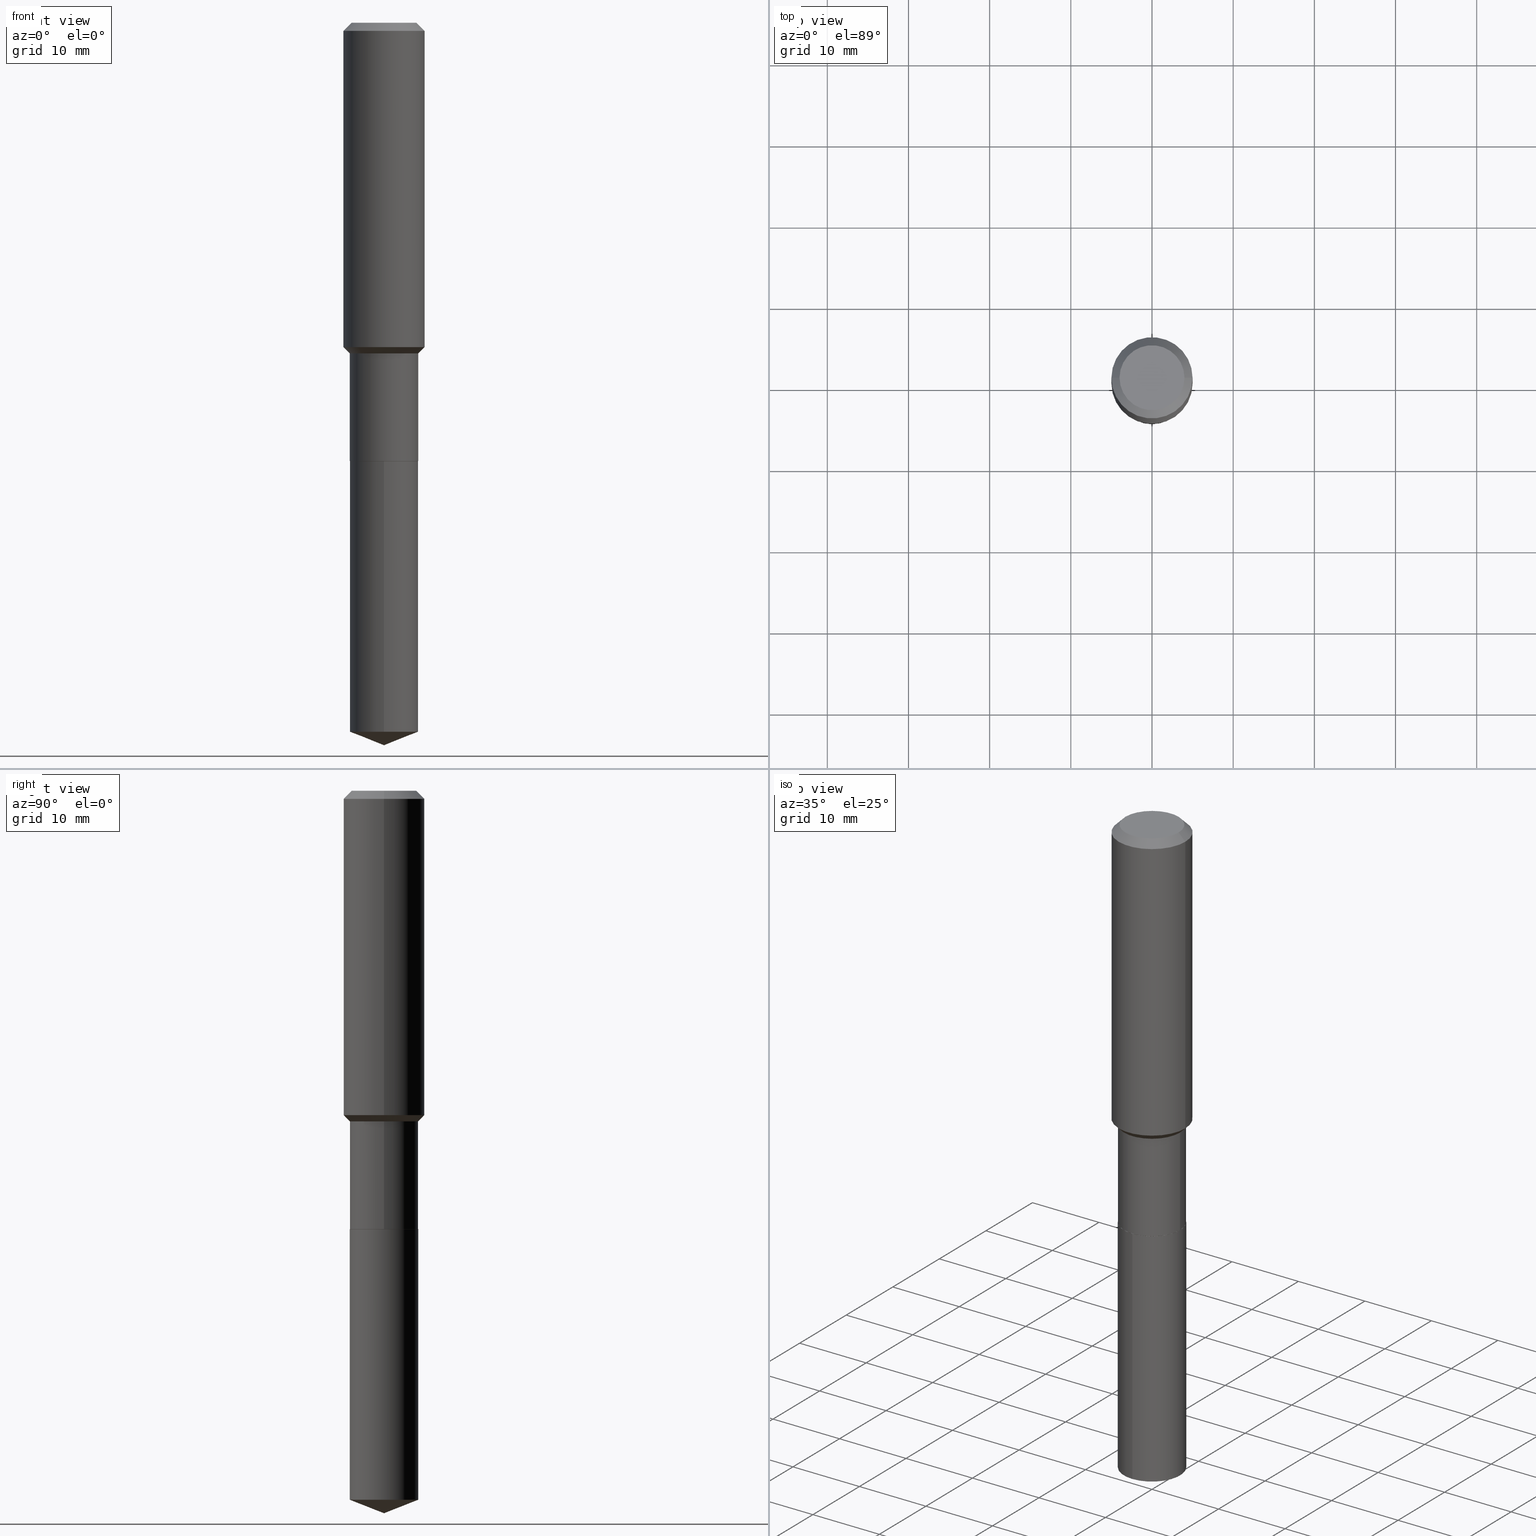
[diagram: canonical four-view strip — front | top / right | iso, engineering-drawing reading convention]
A machine part, canonical four-view strip (front | top / right | iso — engineering-drawing reading convention). The complete STEP part file that produces these views, byte-faithful:
ISO-10303-21;
HEADER;
FILE_DESCRIPTION (( 'STEP AP203' ),
    '1' );
FILE_NAME ('56417.STEP',
    '2024-04-24T17:25:27',
    ( '' ),
    ( '' ),
    'SwSTEP 2.0',
    'SolidWorks 2023',
    '' );
FILE_SCHEMA (( 'CONFIG_CONTROL_DESIGN' ));
ENDSEC;

DATA;
#1 = ORIENTED_EDGE ( 'NONE', *, *, #155, .F. ) ;
#2 = DIRECTION ( 'NONE',  ( 1.000000000000000000, -6.982962677686266711E-15, 0.000000000000000000 ) ) ;
#3 = ORIENTED_EDGE ( 'NONE', *, *, #485, .F. ) ;
#4 = CARTESIAN_POINT ( 'NONE',  ( -8.770026590661456197E-28, 1.252394912314344235E-13, 35.86617874015747987 ) ) ;
#5 = CARTESIAN_POINT ( 'NONE',  ( -0.1659999999999999531, -4.419787681740985649E-15, -1.603699999999999903 ) ) ;
#6 = CARTESIAN_POINT ( 'NONE',  ( 5.197599400665889285E-29, -7.420794437577220826E-15, -2.125399999999999956 ) ) ;
#7 = AXIS2_PLACEMENT_3D ( 'NONE', #401, #405, #254 ) ;
#8 = CARTESIAN_POINT ( 'NONE',  ( 5.198822135068982087E-29, -7.422540178246643119E-15, -2.125899999999999679 ) ) ;
#9 = CC_DESIGN_SECURITY_CLASSIFICATION ( #249, ( #214 ) ) ;
#10 = ORIENTED_EDGE ( 'NONE', *, *, #155, .T. ) ;
#11 = DIRECTION ( 'NONE',  ( 1.000000000000000000, -6.982962677686265922E-15, 0.000000000000000000 ) ) ;
#12 =( LENGTH_UNIT ( ) NAMED_UNIT ( * ) SI_UNIT ( $, .METRE. ) );
#13 = ORIENTED_EDGE ( 'NONE', *, *, #189, .T. ) ;
#14 = DATE_AND_TIME ( #261, #295 ) ;
#15 = DIRECTION ( 'NONE',  ( -2.445222560130398005E-29, 3.491833977208986310E-15, 1.000000000000000000 ) ) ;
#16 = ORIENTED_EDGE ( 'NONE', *, *, #253, .T. ) ;
#17 = CARTESIAN_POINT ( 'NONE',  ( -0.1659999999999999531, -5.330540588978220743E-15, -1.603699999999999903 ) ) ;
#18 = VECTOR ( 'NONE', #257, 39.37007874015748854 ) ;
#19 = AXIS2_PLACEMENT_3D ( 'NONE', #429, #153, #443 ) ;
#20 = ORIENTED_EDGE ( 'NONE', *, *, #148, .F. ) ;
#21 = CALENDAR_DATE ( 2024, 24, 4 ) ;
#22 = CARTESIAN_POINT ( 'NONE',  ( 8.567815328440901140E-29, -1.223503707274256709E-14, -3.503899999999999793 ) ) ;
#23 = EDGE_LOOP ( 'NONE', ( #120, #334, #444, #56 ) ) ;
#24 = ORIENTED_EDGE ( 'NONE', *, *, #323, .F. ) ;
#25 = DATE_AND_TIME ( #21, #152 ) ;
#26 = APPROVAL ( #228, 'UNSPECIFIED' ) ;
#27 = CALENDAR_DATE ( 2024, 24, 4 ) ;
#28 =( CONVERSION_BASED_UNIT ( 'INCH', #378 ) LENGTH_UNIT ( ) NAMED_UNIT ( #277 ) );
#29 = EDGE_LOOP ( 'NONE', ( #218, #78, #448, #58 ) ) ;
#30 = ADVANCED_FACE ( 'NONE', ( #79 ), #158, .T. ) ;
#31 = CLOSED_SHELL ( 'NONE', ( #441, #39, #299, #135, #264 ) ) ;
#32 = CIRCLE ( 'NONE', #411, 0.1968500000000000527 ) ;
#33 = CARTESIAN_POINT ( 'NONE',  ( -9.427742298522567634E-47, 1.346031739168368355E-32, 3.855188123715870730E-18 ) ) ;
#34 = DIRECTION ( 'NONE',  ( -2.445468806185136597E-29, 3.491481338843145583E-15, 1.000000000000000000 ) ) ;
#35 = CIRCLE ( 'NONE', #223, 0.1659999999999999531 ) ;
#36 = DIRECTION ( 'NONE',  ( 1.000000000000000000, -6.982962677686265133E-15, 0.000000000000000000 ) ) ;
#37 = CARTESIAN_POINT ( 'NONE',  ( -0.1968500000000000527, 1.237136582792286422E-15, -0.03937000000000027283 ) ) ;
#38 = EDGE_CURVE ( 'NONE', #164, #465, #104, .T. ) ;
#39 = ADVANCED_FACE ( 'NONE', ( #421 ), #233, .T. ) ;
#40 = ORIENTED_EDGE ( 'NONE', *, *, #188, .F. ) ;
#41 = CARTESIAN_POINT ( 'NONE',  ( 9.627810689950950651E-31, -1.374596203102555808E-16, -0.03937000000000027283 ) ) ;
#42 = FACE_OUTER_BOUND ( 'NONE', #329, .T. ) ;
#43 = AXIS2_PLACEMENT_3D ( 'NONE', #4, #385, #238 ) ;
#44 = AXIS2_PLACEMENT_3D ( 'NONE', #453, #216, #244 ) ;
#45 = DIRECTION ( 'NONE',  ( -2.445468806185136597E-29, 3.491481338843145583E-15, 1.000000000000000000 ) ) ;
#46 = FACE_OUTER_BOUND ( 'NONE', #150, .T. ) ;
#47 = CC_DESIGN_PERSON_AND_ORGANIZATION_ASSIGNMENT ( #140, #69, ( #449 ) ) ;
#48 = ORIENTED_EDGE ( 'NONE', *, *, #382, .T. ) ;
#49 = DIRECTION ( 'NONE',  ( -2.445468806185136597E-29, 3.491481338843145583E-15, 1.000000000000000000 ) ) ;
#50 = CYLINDRICAL_SURFACE ( 'NONE', #240, 0.1659999999999999531 ) ;
#51 = ORIENTED_EDGE ( 'NONE', *, *, #86, .T. ) ;
#52 = FACE_OUTER_BOUND ( 'NONE', #428, .T. ) ;
#53 = CARTESIAN_POINT ( 'NONE',  ( -4.713871149261283817E-47, 6.730158695841841775E-33, 1.927594061857935365E-18 ) ) ;
#54 = APPROVAL_PERSON_ORGANIZATION ( #332, #26, #374 ) ;
#55 = CARTESIAN_POINT ( 'NONE',  ( 1.179500941361818040E-15, 0.1659999999999925979, -2.125900000000000567 ) ) ;
#56 = ORIENTED_EDGE ( 'NONE', *, *, #70, .F. ) ;
#57 = APPROVAL_DATE_TIME ( #179, #342 ) ;
#58 = ORIENTED_EDGE ( 'NONE', *, *, #393, .F. ) ;
#59 = DIRECTION ( 'NONE',  ( -2.445468806185136597E-29, 3.491481338843145583E-15, 1.000000000000000000 ) ) ;
#60 = ORIENTED_EDGE ( 'NONE', *, *, #188, .T. ) ;
#61 = COORDINATED_UNIVERSAL_TIME_OFFSET ( 5, 0, .BEHIND. ) ;
#62 = CARTESIAN_POINT ( 'NONE',  ( -0.1968500000000000527, -1.415814646711089373E-15, -0.03937000000000027283 ) ) ;
#63 = ORIENTED_EDGE ( 'NONE', *, *, #136, .T. ) ;
#64 = AXIS2_PLACEMENT_3D ( 'NONE', #243, #49, #211 ) ;
#65 = VECTOR ( 'NONE', #237, 39.37007874015748143 ) ;
#66 = ORIENTED_EDGE ( 'NONE', *, *, #253, .F. ) ;
#67 = CC_DESIGN_PERSON_AND_ORGANIZATION_ASSIGNMENT ( #68, #476, ( #445 ) ) ;
#68 = PERSON_AND_ORGANIZATION ( #456, #489 ) ;
#69 = PERSON_AND_ORGANIZATION_ROLE ( 'design_owner' ) ;
#70 = EDGE_CURVE ( 'NONE', #292, #109, #166, .T. ) ;
#71 = DIRECTION ( 'NONE',  ( 6.982962677686265922E-15, 1.000000000000000000, -3.491833977208986310E-15 ) ) ;
#72 = AXIS2_PLACEMENT_3D ( 'NONE', #486, #358, #275 ) ;
#73 = AXIS2_PLACEMENT_3D ( 'NONE', #397, #365, #181 ) ;
#74 = DIRECTION ( 'NONE',  ( 1.000000000000000000, -6.982962677686269077E-15, 0.000000000000000000 ) ) ;
#75 = DIRECTION ( 'NONE',  ( -0.7071067811865454633, 2.468850131082235367E-15, -0.7071067811865495711 ) ) ;
#76 = AXIS2_PLACEMENT_3D ( 'NONE', #432, #400, #100 ) ;
#77 = LOCAL_TIME ( 13, 25, 27.00000000000000000, #403 ) ;
#78 = ORIENTED_EDGE ( 'NONE', *, *, #139, .T. ) ;
#79 = FACE_OUTER_BOUND ( 'NONE', #268, .T. ) ;
#80 = LINE ( 'NONE', #124, #65 ) ;
#81 = ORIENTED_EDGE ( 'NONE', *, *, #168, .F. ) ;
#82 = ORIENTED_EDGE ( 'NONE', *, *, #70, .T. ) ;
#83 = DIRECTION ( 'NONE',  ( -2.445222560130398005E-29, 3.491833977208986310E-15, 1.000000000000000000 ) ) ;
#84 = CIRCLE ( 'NONE', #143, 0.1660000000000000087 ) ;
#85 = CARTESIAN_POINT ( 'NONE',  ( 8.568871498273883981E-29, -1.223353772493868500E-14, -3.503899999999999793 ) ) ;
#86 = EDGE_CURVE ( 'NONE', #164, #190, #172, .T. ) ;
#87 = CARTESIAN_POINT ( 'NONE',  ( 0.1968500000000002192, -6.866172626901982716E-15, -1.572849999999999637 ) ) ;
#88 = CARTESIAN_POINT ( 'NONE',  ( 0.1968500000000000527, -1.512055823412797583E-15, -0.03937000000000027283 ) ) ;
#89 = DIRECTION ( 'NONE',  ( 1.000000000000000000, -6.982962677686269077E-15, 0.000000000000000000 ) ) ;
#90 = DIRECTION ( 'NONE',  ( 1.000000000000000000, -6.982962677686265922E-15, 0.000000000000000000 ) ) ;
#91 = ORIENTED_EDGE ( 'NONE', *, *, #255, .F. ) ;
#92 = ADVANCED_FACE ( 'NONE', ( #318 ), #487, .T. ) ;
#93 = EDGE_CURVE ( 'NONE', #465, #164, #95, .T. ) ;
#94 = FACE_OUTER_BOUND ( 'NONE', #111, .T. ) ;
#95 = CIRCLE ( 'NONE', #142, 0.1655000000000000082 ) ;
#96 = AXIS2_PLACEMENT_3D ( 'NONE', #319, #171, #427 ) ;
#97 = ORIENTED_EDGE ( 'NONE', *, *, #271, .T. ) ;
#98 = CARTESIAN_POINT ( 'NONE',  ( 0.000000000000000000, 0.000000000000000000, 0.000000000000000000 ) ) ;
#99 = SHAPE_DEFINITION_REPRESENTATION ( #387, #289 ) ;
#100 = DIRECTION ( 'NONE',  ( 1.000000000000000000, 0.000000000000000000, 0.000000000000000000 ) ) ;
#101 = DIRECTION ( 'NONE',  ( -2.445468806185136877E-29, 3.491481338843145188E-15, 1.000000000000000000 ) ) ;
#102 = CC_DESIGN_PERSON_AND_ORGANIZATION_ASSIGNMENT ( #146, #435, ( #249 ) ) ;
#103 = PERSON_AND_ORGANIZATION ( #456, #489 ) ;
#104 = CIRCLE ( 'NONE', #458, 0.1655000000000000082 ) ;
#105 =( GEOMETRIC_REPRESENTATION_CONTEXT ( 3 ) GLOBAL_UNCERTAINTY_ASSIGNED_CONTEXT ( ( #301 ) ) GLOBAL_UNIT_ASSIGNED_CONTEXT ( ( #28, #267, #252 ) ) REPRESENTATION_CONTEXT ( 'NONE', 'WORKASPACE' ) );
#106 = EDGE_LOOP ( 'NONE', ( #462, #266, #361, #20 ) ) ;
#107 = DIRECTION ( 'NONE',  ( -6.982962677686265922E-15, -1.000000000000000000, 3.498627837350033410E-15 ) ) ;
#108 = ADVANCED_FACE ( 'NONE', ( #419 ), #335, .T. ) ;
#109 = VERTEX_POINT ( 'NONE', #62 ) ;
#110 = DIRECTION ( 'NONE',  ( 2.445468806185136597E-29, -3.491481338843145583E-15, -1.000000000000000000 ) ) ;
#111 = EDGE_LOOP ( 'NONE', ( #447, #245, #418, #81 ) ) ;
#112 = CARTESIAN_POINT ( 'NONE',  ( 0.000000000000000000, 0.000000000000000000, 0.000000000000000000 ) ) ;
#113 = VERTEX_POINT ( 'NONE', #87 ) ;
#114 = VERTEX_POINT ( 'NONE', #219 ) ;
#115 = ORIENTED_EDGE ( 'NONE', *, *, #255, .T. ) ;
#116 = LINE ( 'NONE', #195, #412 ) ;
#117 = EDGE_LOOP ( 'NONE', ( #263, #353 ) ) ;
#118 = AXIS2_PLACEMENT_3D ( 'NONE', #6, #59, #89 ) ;
#119 = AXIS2_PLACEMENT_3D ( 'NONE', #314, #110, #161 ) ;
#120 = ORIENTED_EDGE ( 'NONE', *, *, #241, .F. ) ;
#121 = ORIENTED_EDGE ( 'NONE', *, *, #160, .T. ) ;
#122 = DIRECTION ( 'NONE',  ( -2.445468806185136877E-29, 3.491481338843145188E-15, 1.000000000000000000 ) ) ;
#123 = ORIENTED_EDGE ( 'NONE', *, *, #291, .F. ) ;
#124 = CARTESIAN_POINT ( 'NONE',  ( 0.1968500000000000527, -1.487948651171581996E-15, -0.03937000000000027283 ) ) ;
#125 = ORIENTED_EDGE ( 'NONE', *, *, #406, .F. ) ;
#126 = ADVANCED_FACE ( 'NONE', ( #52 ), #297, .T. ) ;
#127 = FACE_OUTER_BOUND ( 'NONE', #430, .T. ) ;
#128 = CIRCLE ( 'NONE', #185, 0.1968500000000002192 ) ;
#129 = CONICAL_SURFACE ( 'NONE', #306, 0.1655000000000000082, 0.7853981633975165577 ) ;
#130 = LINE ( 'NONE', #217, #258 ) ;
#131 = DIRECTION ( 'NONE',  ( 1.000000000000000000, -6.982962677686264344E-15, 0.000000000000000000 ) ) ;
#132 = LINE ( 'NONE', #55, #354 ) ;
#133 = PLANE ( 'NONE',  #96 ) ;
#134 = ORIENTED_EDGE ( 'NONE', *, *, #473, .F. ) ;
#135 = ADVANCED_FACE ( 'NONE', ( #472 ), #287, .T. ) ;
#136 = EDGE_CURVE ( 'NONE', #114, #475, #132, .T. ) ;
#137 = DIRECTION ( 'NONE',  ( 1.000000000000000000, -6.982962677686264344E-15, 0.000000000000000000 ) ) ;
#138 = ORIENTED_EDGE ( 'NONE', *, *, #241, .T. ) ;
#139 = EDGE_CURVE ( 'NONE', #202, #190, #346, .T. ) ;
#140 = PERSON_AND_ORGANIZATION ( #456, #489 ) ;
#141 = LINE ( 'NONE', #369, #151 ) ;
#142 = AXIS2_PLACEMENT_3D ( 'NONE', #454, #162, #36 ) ;
#143 = AXIS2_PLACEMENT_3D ( 'NONE', #8, #83, #163 ) ;
#144 = ORIENTED_EDGE ( 'NONE', *, *, #136, .F. ) ;
#145 = DATE_TIME_ROLE ( 'classification_date' ) ;
#146 = PERSON_AND_ORGANIZATION ( #456, #489 ) ;
#147 = DIRECTION ( 'NONE',  ( -2.445468806185136597E-29, 3.491481338843145583E-15, 1.000000000000000000 ) ) ;
#148 = EDGE_CURVE ( 'NONE', #190, #170, #130, .T. ) ;
#149 = COORDINATED_UNIVERSAL_TIME_OFFSET ( 5, 0, .BEHIND. ) ;
#150 = EDGE_LOOP ( 'NONE', ( #339, #63, #66, #1 ) ) ;
#151 = VECTOR ( 'NONE', #15, 39.37007874015748143 ) ;
#152 = LOCAL_TIME ( 13, 25, 27.00000000000000000, #294 ) ;
#153 = DIRECTION ( 'NONE',  ( -2.445222560130398005E-29, 3.491833977208986310E-15, 1.000000000000000000 ) ) ;
#154 = MANIFOLD_SOLID_BREP ( 'Body-Move/Copy2[2]', #407 ) ;
#155 = EDGE_CURVE ( 'NONE', #236, #213, #141, .T. ) ;
#156 = DIRECTION ( 'NONE',  ( -0.7071067811865957564, 7.493145998870527710E-15, 0.7071067811864992780 ) ) ;
#157 = CARTESIAN_POINT ( 'NONE',  ( -0.1574800000000000089, 1.168406772637159815E-15, 3.855188123707939751E-18 ) ) ;
#158 = CONICAL_SURFACE ( 'NONE', #72, 0.1659999999999999531, 0.7853981633974477239 ) ;
#159 = VECTOR ( 'NONE', #122, 39.37007874015748143 ) ;
#160 = EDGE_CURVE ( 'NONE', #248, #113, #128, .T. ) ;
#161 = DIRECTION ( 'NONE',  ( -1.000000000000000000, 6.982962677686266711E-15, 0.000000000000000000 ) ) ;
#162 = DIRECTION ( 'NONE',  ( -2.445468806185136597E-29, 3.491481338843145583E-15, 1.000000000000000000 ) ) ;
#163 = DIRECTION ( 'NONE',  ( -6.982962677686266711E-15, -1.000000000000000000, 3.291383124896702687E-15 ) ) ;
#164 = VERTEX_POINT ( 'NONE', #460 ) ;
#165 = LOCAL_TIME ( 13, 25, 27.00000000000000000, #61 ) ;
#166 = LINE ( 'NONE', #37, #269 ) ;
#167 = CARTESIAN_POINT ( 'NONE',  ( 8.408447825175541831E-29, -1.200595938170731200E-14, -3.438510861047919587 ) ) ;
#168 = EDGE_CURVE ( 'NONE', #170, #113, #222, .T. ) ;
#169 = ADVANCED_FACE ( 'NONE', ( #300 ), #333, .T. ) ;
#170 = VERTEX_POINT ( 'NONE', #327 ) ;
#171 = DIRECTION ( 'NONE',  ( -2.438088387897960049E-29, 3.491481338843145188E-15, 1.000000000000000000 ) ) ;
#172 = LINE ( 'NONE', #207, #175 ) ;
#173 = DIRECTION ( 'NONE',  ( 1.000000000000000000, -6.982962677686265922E-15, 4.876176775795935793E-29 ) ) ;
#174 = ADVANCED_FACE ( 'NONE', ( #94 ), #308, .T. ) ;
#175 = VECTOR ( 'NONE', #352, 39.37007874015748143 ) ;
#176 = CARTESIAN_POINT ( 'NONE',  ( 0.1659999999999999531, -6.758460427598671607E-15, -1.603699999999999903 ) ) ;
#177 = LINE ( 'NONE', #355, #159 ) ;
#178 = ORIENTED_EDGE ( 'NONE', *, *, #271, .F. ) ;
#179 = DATE_AND_TIME ( #226, #77 ) ;
#180 = ORIENTED_EDGE ( 'NONE', *, *, #326, .F. ) ;
#181 = DIRECTION ( 'NONE',  ( -6.982962677686266711E-15, -1.000000000000000000, 3.291383124896702687E-15 ) ) ;
#182 = ORIENTED_EDGE ( 'NONE', *, *, #291, .T. ) ;
#183 = CARTESIAN_POINT ( 'NONE',  ( 3.846355611808290981E-29, -5.491576423799439530E-15, -1.572849999999999637 ) ) ;
#184 = VERTEX_POINT ( 'NONE', #17 ) ;
#185 = AXIS2_PLACEMENT_3D ( 'NONE', #183, #147, #11 ) ;
#186 = DIRECTION ( 'NONE',  ( -2.445468806185136597E-29, 3.491481338843145583E-15, 1.000000000000000000 ) ) ;
#187 = DATE_AND_TIME ( #27, #193 ) ;
#188 = EDGE_CURVE ( 'NONE', #113, #350, #337, .T. ) ;
#189 = EDGE_CURVE ( 'NONE', #437, #236, #395, .T. ) ;
#190 = VERTEX_POINT ( 'NONE', #290 ) ;
#191 = APPLICATION_CONTEXT ( 'configuration controlled 3d designs of mechanical parts and assemblies' ) ;
#192 = VECTOR ( 'NONE', #101, 39.37007874015748143 ) ;
#193 = LOCAL_TIME ( 13, 25, 27.00000000000000000, #440 ) ;
#194 = PRODUCT_RELATED_PRODUCT_CATEGORY ( 'detail', '', ( #449 ) ) ;
#195 = CARTESIAN_POINT ( 'NONE',  ( -0.1655000000000000082, -6.246591950563676661E-15, -2.125899999999999679 ) ) ;
#196 = DIRECTION ( 'NONE',  ( 1.000000000000000000, -6.982962677686265922E-15, 4.876223630392693006E-29 ) ) ;
#197 = CC_DESIGN_PERSON_AND_ORGANIZATION_ASSIGNMENT ( #480, #466, ( #214 ) ) ;
#198 = ORIENTED_EDGE ( 'NONE', *, *, #471, .F. ) ;
#199 = AXIS2_PLACEMENT_3D ( 'NONE', #41, #452, #200 ) ;
#200 = DIRECTION ( 'NONE',  ( -1.000000000000000000, 6.982962677686266711E-15, 0.000000000000000000 ) ) ;
#201 = ORIENTED_EDGE ( 'NONE', *, *, #189, .F. ) ;
#202 = VERTEX_POINT ( 'NONE', #322 ) ;
#203 = FACE_OUTER_BOUND ( 'NONE', #402, .T. ) ;
#204 = FACE_OUTER_BOUND ( 'NONE', #376, .T. ) ;
#205 = AXIS2_PLACEMENT_3D ( 'NONE', #481, #230, #71 ) ;
#206 = AXIS2_PLACEMENT_3D ( 'NONE', #312, #414, #74 ) ;
#207 = CARTESIAN_POINT ( 'NONE',  ( 0.1655000000000000082, -8.578220501403719502E-15, -2.125899999999999679 ) ) ;
#208 = DIRECTION ( 'NONE',  ( -2.445222560130398005E-29, 3.491833977208986310E-15, 1.000000000000000000 ) ) ;
#209 = ORIENTED_EDGE ( 'NONE', *, *, #139, .F. ) ;
#210 = DIRECTION ( 'NONE',  ( -2.445468806185136597E-29, 3.491481338843145583E-15, 1.000000000000000000 ) ) ;
#211 = DIRECTION ( 'NONE',  ( 1.000000000000000000, -6.982962677686265922E-15, 4.876223630392693006E-29 ) ) ;
#212 = DIRECTION ( 'NONE',  ( -6.982962677686266711E-15, -1.000000000000000000, 3.291383124896702687E-15 ) ) ;
#213 = VERTEX_POINT ( 'NONE', #457 ) ;
#214 = PRODUCT_DEFINITION_FORMATION_WITH_SPECIFIED_SOURCE ( 'ANY', '', #449, .NOT_KNOWN. ) ;
#215 = DIRECTION ( 'NONE',  ( -2.445222560130398005E-29, 3.491833977208986310E-15, 1.000000000000000000 ) ) ;
#216 = DIRECTION ( 'NONE',  ( -2.445468806185136597E-29, 3.491481338843145583E-15, 1.000000000000000000 ) ) ;
#217 = CARTESIAN_POINT ( 'NONE',  ( 0.1659999999999999531, -1.159171804495919785E-15, 8.094453447821250782E-30 ) ) ;
#218 = ORIENTED_EDGE ( 'NONE', *, *, #231, .F. ) ;
#219 = CARTESIAN_POINT ( 'NONE',  ( 1.179500941361850581E-15, 0.1659999999999879905, -3.438510861047920031 ) ) ;
#220 = CC_DESIGN_DATE_AND_TIME_ASSIGNMENT ( #259, #145, ( #249 ) ) ;
#221 = APPLICATION_PROTOCOL_DEFINITION ( 'international standard', 'config_control_design', 1994, #191 ) ;
#222 = LINE ( 'NONE', #176, #442 ) ;
#223 = AXIS2_PLACEMENT_3D ( 'NONE', #366, #210, #131 ) ;
#224 = ORIENTED_EDGE ( 'NONE', *, *, #86, .F. ) ;
#225 = PLANE ( 'NONE',  #205 ) ;
#226 = CALENDAR_DATE ( 2024, 24, 4 ) ;
#227 = APPROVAL_STATUS ( 'not_yet_approved' ) ;
#228 = APPROVAL_STATUS ( 'not_yet_approved' ) ;
#229 = AXIS2_PLACEMENT_3D ( 'NONE', #363, #239, #459 ) ;
#230 = DIRECTION ( 'NONE',  ( 2.445222560130397725E-29, -3.491833977208986310E-15, -1.000000000000000000 ) ) ;
#231 = EDGE_CURVE ( 'NONE', #202, #184, #246, .T. ) ;
#232 = EDGE_LOOP ( 'NONE', ( #201, #313, #469 ) ) ;
#233 = CONICAL_SURFACE ( 'NONE', #43, 99.94676754583913691, 1.195550537616116626 ) ;
#234 = CIRCLE ( 'NONE', #282, 0.1968500000000002192 ) ;
#235 = CARTESIAN_POINT ( 'NONE',  ( 5.198822135068982087E-29, -7.422540178246643119E-15, -2.125899999999999679 ) ) ;
#236 = VERTEX_POINT ( 'NONE', #424 ) ;
#237 = DIRECTION ( 'NONE',  ( 0.7071067811865454633, -7.319954787623248157E-15, -0.7071067811865495711 ) ) ;
#238 = DIRECTION ( 'NONE',  ( -6.982962677686265922E-15, -1.000000000000000000, 3.498627837350033410E-15 ) ) ;
#239 = DIRECTION ( 'NONE',  ( -2.445468806185136597E-29, 3.491481338843145583E-15, 1.000000000000000000 ) ) ;
#240 = AXIS2_PLACEMENT_3D ( 'NONE', #461, #316, #173 ) ;
#241 = EDGE_CURVE ( 'NONE', #278, #292, #281, .T. ) ;
#242 = DIRECTION ( 'NONE',  ( 6.611014441532059489E-15, 0.9304175679820261280, 0.3665012267242931943 ) ) ;
#243 = CARTESIAN_POINT ( 'NONE',  ( -9.427742298522567634E-47, 1.346031739168368355E-32, 3.855188123715870730E-18 ) ) ;
#244 = DIRECTION ( 'NONE',  ( 1.000000000000000000, -6.982962677686264344E-15, 0.000000000000000000 ) ) ;
#245 = ORIENTED_EDGE ( 'NONE', *, *, #471, .T. ) ;
#246 = LINE ( 'NONE', #330, #482 ) ;
#247 = PLANE ( 'NONE',  #483 ) ;
#248 = VERTEX_POINT ( 'NONE', #362 ) ;
#249 = SECURITY_CLASSIFICATION ( '', '', #470 ) ;
#250 = DIRECTION ( 'NONE',  ( -2.445222560130398005E-29, 3.491833977208986310E-15, 1.000000000000000000 ) ) ;
#251 = ORIENTED_EDGE ( 'NONE', *, *, #168, .T. ) ;
#252 =( NAMED_UNIT ( * ) SI_UNIT ( $, .STERADIAN. ) SOLID_ANGLE_UNIT ( ) );
#253 = EDGE_CURVE ( 'NONE', #213, #475, #479, .T. ) ;
#254 = DIRECTION ( 'NONE',  ( 1.000000000000000000, -6.982962677686266711E-15, 4.876176775795935793E-29 ) ) ;
#255 = EDGE_CURVE ( 'NONE', #114, #236, #309, .T. ) ;
#256 = CALENDAR_DATE ( 2024, 24, 4 ) ;
#257 = DIRECTION ( 'NONE',  ( -6.497071151882111948E-15, -0.9304175679820234635, 0.3665012267242997446 ) ) ;
#258 = VECTOR ( 'NONE', #433, 39.37007874015748143 ) ;
#259 = DATE_AND_TIME ( #256, #165 ) ;
#260 = ORIENTED_EDGE ( 'NONE', *, *, #338, .F. ) ;
#261 = CALENDAR_DATE ( 2024, 24, 4 ) ;
#262 = CONICAL_SURFACE ( 'NONE', #229, 0.1655000000000000082, 0.7853981633975165577 ) ;
#263 = ORIENTED_EDGE ( 'NONE', *, *, #38, .F. ) ;
#264 = ADVANCED_FACE ( 'NONE', ( #203 ), #225, .F. ) ;
#265 = ORIENTED_EDGE ( 'NONE', *, *, #93, .T. ) ;
#266 = ORIENTED_EDGE ( 'NONE', *, *, #231, .T. ) ;
#267 =( NAMED_UNIT ( * ) PLANE_ANGLE_UNIT ( ) SI_UNIT ( $, .RADIAN. ) );
#268 = EDGE_LOOP ( 'NONE', ( #198, #272, #251, #274 ) ) ;
#269 = VECTOR ( 'NONE', #75, 39.37007874015748143 ) ;
#270 = AXIS2_PLACEMENT_3D ( 'NONE', #490, #208, #212 ) ;
#271 = EDGE_CURVE ( 'NONE', #465, #202, #116, .T. ) ;
#272 = ORIENTED_EDGE ( 'NONE', *, *, #393, .T. ) ;
#273 = CARTESIAN_POINT ( 'NONE',  ( 8.567815328440901140E-29, -1.223503707274256709E-14, -3.503899999999999793 ) ) ;
#274 = ORIENTED_EDGE ( 'NONE', *, *, #160, .F. ) ;
#275 = DIRECTION ( 'NONE',  ( 1.000000000000000000, -6.982962677686264344E-15, 0.000000000000000000 ) ) ;
#276 = CARTESIAN_POINT ( 'NONE',  ( 5.198822135068982087E-29, -7.422540178246643119E-15, -2.125899999999999679 ) ) ;
#277 = DIMENSIONAL_EXPONENTS ( 1.000000000000000000, 0.000000000000000000, 0.000000000000000000, 0.000000000000000000, 0.000000000000000000, 0.000000000000000000, 0.000000000000000000 ) ;
#278 = VERTEX_POINT ( 'NONE', #386 ) ;
#279 = DIRECTION ( 'NONE',  ( 1.000000000000000000, -6.982962677686265133E-15, 0.000000000000000000 ) ) ;
#280 = CC_DESIGN_DATE_AND_TIME_ASSIGNMENT ( #14, #438, ( #445 ) ) ;
#281 = CIRCLE ( 'NONE', #64, 0.1574800000000000089 ) ;
#282 = AXIS2_PLACEMENT_3D ( 'NONE', #359, #425, #90 ) ;
#283 = DIRECTION ( 'NONE',  ( -2.445468806185136877E-29, 3.491481338843145188E-15, 1.000000000000000000 ) ) ;
#284 = DIRECTION ( 'NONE',  ( -2.445468806185136597E-29, 3.491481338843145583E-15, 1.000000000000000000 ) ) ;
#285 = ORIENTED_EDGE ( 'NONE', *, *, #38, .T. ) ;
#286 = APPLICATION_CONTEXT ( 'configuration controlled 3d designs of mechanical parts and assemblies' ) ;
#287 = CYLINDRICAL_SURFACE ( 'NONE', #389, 0.1660000000000000087 ) ;
#288 = FACE_OUTER_BOUND ( 'NONE', #29, .T. ) ;
#289 = ADVANCED_BREP_SHAPE_REPRESENTATION ( '56417', ( #463, #154, #76 ), #105 ) ;
#290 = CARTESIAN_POINT ( 'NONE',  ( 0.1659999999999999809, -8.579966242073141795E-15, -2.125399999999999956 ) ) ;
#291 = EDGE_CURVE ( 'NONE', #292, #278, #325, .T. ) ;
#292 = VERTEX_POINT ( 'NONE', #157 ) ;
#293 = AXIS2_PLACEMENT_3D ( 'NONE', #112, #320, #415 ) ;
#294 = COORDINATED_UNIVERSAL_TIME_OFFSET ( 5, 0, .BEHIND. ) ;
#295 = LOCAL_TIME ( 13, 25, 27.00000000000000000, #149 ) ;
#296 = APPROVAL ( #410, 'UNSPECIFIED' ) ;
#297 = CYLINDRICAL_SURFACE ( 'NONE', #7, 0.1968500000000001082 ) ;
#298 = APPROVAL_ROLE ( '' ) ;
#299 = ADVANCED_FACE ( 'NONE', ( #348 ), #431, .T. ) ;
#300 = FACE_OUTER_BOUND ( 'NONE', #106, .T. ) ;
#301 = UNCERTAINTY_MEASURE_WITH_UNIT (LENGTH_MEASURE( 1.000000000000000082E-05 ), #28, 'distance_accuracy_value', 'NONE');
#302 = ORIENTED_EDGE ( 'NONE', *, *, #338, .T. ) ;
#303 = ADVANCED_FACE ( 'NONE', ( #307 ), #439, .T. ) ;
#304 = APPROVAL_ROLE ( '' ) ;
#305 = AXIS2_PLACEMENT_3D ( 'NONE', #98, #186, #467 ) ;
#306 = AXIS2_PLACEMENT_3D ( 'NONE', #276, #422, #279 ) ;
#307 = FACE_OUTER_BOUND ( 'NONE', #23, .T. ) ;
#308 = CONICAL_SURFACE ( 'NONE', #478, 0.1659999999999999531, 0.7853981633974477239 ) ;
#309 = CIRCLE ( 'NONE', #19, 0.1660000000000000087 ) ;
#310 = CARTESIAN_POINT ( 'NONE',  ( -8.770026590661456197E-28, 1.252394912314344235E-13, 35.86617874015747987 ) ) ;
#311 = EDGE_LOOP ( 'NONE', ( #48, #384, #125, #40 ) ) ;
#312 = CARTESIAN_POINT ( 'NONE',  ( 5.197599400665889285E-29, -7.420794437577220826E-15, -2.125399999999999956 ) ) ;
#313 = ORIENTED_EDGE ( 'NONE', *, *, #485, .T. ) ;
#314 = CARTESIAN_POINT ( 'NONE',  ( 9.627810689950950651E-31, -1.374596203102555808E-16, -0.03937000000000027283 ) ) ;
#315 = ORIENTED_EDGE ( 'NONE', *, *, #326, .T. ) ;
#316 = DIRECTION ( 'NONE',  ( -2.445468806185136597E-29, 3.491481338843145583E-15, 1.000000000000000000 ) ) ;
#317 = AXIS2_PLACEMENT_3D ( 'NONE', #310, #446, #107 ) ;
#318 = FACE_OUTER_BOUND ( 'NONE', #311, .T. ) ;
#319 = CARTESIAN_POINT ( 'NONE',  ( 5.198822135068982087E-29, -7.422540178246643119E-15, -2.125899999999999679 ) ) ;
#320 = DIRECTION ( 'NONE',  ( -2.445468806185136597E-29, 3.491481338843145583E-15, 1.000000000000000000 ) ) ;
#321 = LINE ( 'NONE', #5, #399 ) ;
#322 = CARTESIAN_POINT ( 'NONE',  ( -0.1659999999999999809, -5.330540588978220743E-15, -2.125399999999999956 ) ) ;
#323 = EDGE_CURVE ( 'NONE', #190, #202, #391, .T. ) ;
#324 = DIRECTION ( 'NONE',  ( -1.000000000000000000, 6.982962677686265922E-15, -4.876176775795935793E-29 ) ) ;
#325 = CIRCLE ( 'NONE', #336, 0.1574800000000000089 ) ;
#326 = EDGE_CURVE ( 'NONE', #109, #350, #408, .T. ) ;
#327 = CARTESIAN_POINT ( 'NONE',  ( 0.1659999999999999531, -6.758460427598671607E-15, -1.603699999999999903 ) ) ;
#328 = DIRECTION ( 'NONE',  ( -2.445222560130398005E-29, 3.491833977208986310E-15, 1.000000000000000000 ) ) ;
#329 = EDGE_LOOP ( 'NONE', ( #178, #265, #51, #209 ) ) ;
#330 = CARTESIAN_POINT ( 'NONE',  ( -0.1659999999999999531, 1.179500941361765976E-15, -8.165432249823140313E-30 ) ) ;
#331 = EDGE_LOOP ( 'NONE', ( #3, #13, #91 ) ) ;
#332 = PERSON_AND_ORGANIZATION ( #456, #489 ) ;
#333 = CYLINDRICAL_SURFACE ( 'NONE', #305, 0.1659999999999999531 ) ;
#334 = ORIENTED_EDGE ( 'NONE', *, *, #473, .T. ) ;
#335 = CONICAL_SURFACE ( 'NONE', #199, 0.1968500000000000527, 0.7853981633974453924 ) ;
#336 = AXIS2_PLACEMENT_3D ( 'NONE', #33, #351, #196 ) ;
#337 = LINE ( 'NONE', #436, #192 ) ;
#338 = EDGE_CURVE ( 'NONE', #475, #213, #84, .T. ) ;
#339 = ORIENTED_EDGE ( 'NONE', *, *, #349, .T. ) ;
#340 = APPROVAL_DATE_TIME ( #187, #26 ) ;
#341 = DESIGN_CONTEXT ( 'detailed design', #286, 'design' ) ;
#342 = APPROVAL ( #227, 'UNSPECIFIED' ) ;
#343 = EDGE_LOOP ( 'NONE', ( #144, #115, #10, #260 ) ) ;
#344 = APPROVAL_DATE_TIME ( #25, #296 ) ;
#345 = MECHANICAL_CONTEXT ( 'NONE', #191, 'mechanical' ) ;
#346 = CIRCLE ( 'NONE', #118, 0.1659999999999999809 ) ;
#347 = CIRCLE ( 'NONE', #44, 0.1659999999999999531 ) ;
#348 = FACE_OUTER_BOUND ( 'NONE', #331, .T. ) ;
#349 = EDGE_CURVE ( 'NONE', #236, #114, #372, .T. ) ;
#350 = VERTEX_POINT ( 'NONE', #88 ) ;
#351 = DIRECTION ( 'NONE',  ( -2.445468806185136597E-29, 3.491481338843145583E-15, 1.000000000000000000 ) ) ;
#352 = DIRECTION ( 'NONE',  ( 0.7071067811865957564, -2.468850131082761932E-15, 0.7071067811864992780 ) ) ;
#353 = ORIENTED_EDGE ( 'NONE', *, *, #93, .F. ) ;
#354 = VECTOR ( 'NONE', #215, 39.37007874015748143 ) ;
#355 = CARTESIAN_POINT ( 'NONE',  ( -0.1968500000000001082, 1.398703375343757985E-15, -9.682923725166787881E-30 ) ) ;
#356 = DIRECTION ( 'NONE',  ( 1.000000000000000000, -6.982962677686266711E-15, 0.000000000000000000 ) ) ;
#357 = ADVANCED_FACE ( 'NONE', ( #42 ), #262, .T. ) ;
#358 = DIRECTION ( 'NONE',  ( -2.445468806185136597E-29, 3.491481338843145583E-15, 1.000000000000000000 ) ) ;
#359 = CARTESIAN_POINT ( 'NONE',  ( 3.846355611808290981E-29, -5.491576423799439530E-15, -1.572849999999999637 ) ) ;
#360 = ADVANCED_FACE ( 'NONE', ( #451 ), #133, .F. ) ;
#361 = ORIENTED_EDGE ( 'NONE', *, *, #416, .F. ) ;
#362 = CARTESIAN_POINT ( 'NONE',  ( -0.1968500000000002192, -4.092873048455680953E-15, -1.572849999999999637 ) ) ;
#363 = CARTESIAN_POINT ( 'NONE',  ( 5.198822135068982087E-29, -7.422540178246643119E-15, -2.125899999999999679 ) ) ;
#364 = APPROVAL_PERSON_ORGANIZATION ( #368, #296, #304 ) ;
#365 = DIRECTION ( 'NONE',  ( -2.445222560130398005E-29, 3.491833977208986310E-15, 1.000000000000000000 ) ) ;
#366 = CARTESIAN_POINT ( 'NONE',  ( 3.921798324479103604E-29, -5.599288623102752216E-15, -1.603699999999999903 ) ) ;
#367 = EDGE_CURVE ( 'NONE', #248, #109, #177, .T. ) ;
#368 = PERSON_AND_ORGANIZATION ( #456, #489 ) ;
#369 = CARTESIAN_POINT ( 'NONE',  ( -1.159171804495868312E-15, -0.1660000000000074194, -2.125899999999999235 ) ) ;
#370 = ORIENTED_EDGE ( 'NONE', *, *, #367, .F. ) ;
#371 = DIRECTION ( 'NONE',  ( -2.445468806185136597E-29, 3.491481338843145583E-15, 1.000000000000000000 ) ) ;
#372 = CIRCLE ( 'NONE', #383, 0.1660000000000000087 ) ;
#373 = ADVANCED_FACE ( 'NONE', ( #288 ), #50, .T. ) ;
#374 = APPROVAL_ROLE ( '' ) ;
#375 = DIRECTION ( 'NONE',  ( -6.982962677686266711E-15, -1.000000000000000000, 3.291383124896702687E-15 ) ) ;
#376 = EDGE_LOOP ( 'NONE', ( #182, #138 ) ) ;
#377 = EDGE_LOOP ( 'NONE', ( #134, #123, #82, #315 ) ) ;
#378 = LENGTH_MEASURE_WITH_UNIT ( LENGTH_MEASURE( 0.02539999999999999897 ), #12 );
#379 = VECTOR ( 'NONE', #242, 39.37007874015748143 ) ;
#380 = CC_DESIGN_PERSON_AND_ORGANIZATION_ASSIGNMENT ( #103, #474, ( #214 ) ) ;
#381 = CARTESIAN_POINT ( 'NONE',  ( 9.627810689950950651E-31, -1.374596203102555808E-16, -0.03937000000000027283 ) ) ;
#382 = EDGE_CURVE ( 'NONE', #113, #248, #234, .T. ) ;
#383 = AXIS2_PLACEMENT_3D ( 'NONE', #167, #328, #394 ) ;
#384 = ORIENTED_EDGE ( 'NONE', *, *, #367, .T. ) ;
#385 = DIRECTION ( 'NONE',  ( -2.445222560130398005E-29, 3.491833977208986310E-15, 1.000000000000000000 ) ) ;
#386 = CARTESIAN_POINT ( 'NONE',  ( 0.1574800000000000089, -1.284169937930321386E-15, 3.855188123724205385E-18 ) ) ;
#387 = PRODUCT_DEFINITION_SHAPE ( 'NONE', 'NONE',  #445 ) ;
#388 = CARTESIAN_POINT ( 'NONE',  ( 1.179500941361850581E-15, 0.1659999999999925979, -2.125900000000000567 ) ) ;
#389 = AXIS2_PLACEMENT_3D ( 'NONE', #404, #250, #375 ) ;
#390 = CARTESIAN_POINT ( 'NONE',  ( 9.627810689950950651E-31, -1.374596203102555808E-16, -0.03937000000000027283 ) ) ;
#391 = CIRCLE ( 'NONE', #206, 0.1659999999999999809 ) ;
#392 = APPROVAL_PERSON_ORGANIZATION ( #434, #342, #298 ) ;
#393 = EDGE_CURVE ( 'NONE', #184, #170, #35, .T. ) ;
#394 = DIRECTION ( 'NONE',  ( -6.982962677686266711E-15, -1.000000000000000000, 3.291383124896702687E-15 ) ) ;
#395 = LINE ( 'NONE', #22, #18 ) ;
#396 = CYLINDRICAL_SURFACE ( 'NONE', #270, 0.1660000000000000087 ) ;
#397 = CARTESIAN_POINT ( 'NONE',  ( 5.198822135068982087E-29, -7.422540178246643119E-15, -2.125899999999999679 ) ) ;
#398 = DIRECTION ( 'NONE',  ( 2.438088387897960049E-29, -3.491481338843145188E-15, -1.000000000000000000 ) ) ;
#399 = VECTOR ( 'NONE', #455, 39.37007874015748143 ) ;
#400 = DIRECTION ( 'NONE',  ( 0.000000000000000000, 0.000000000000000000, 1.000000000000000000 ) ) ;
#401 = CARTESIAN_POINT ( 'NONE',  ( 0.000000000000000000, 0.000000000000000000, 0.000000000000000000 ) ) ;
#402 = EDGE_LOOP ( 'NONE', ( #16, #302 ) ) ;
#403 = COORDINATED_UNIVERSAL_TIME_OFFSET ( 5, 0, .BEHIND. ) ;
#404 = CARTESIAN_POINT ( 'NONE',  ( 5.198822135068982087E-29, -7.422540178246643119E-15, -2.125899999999999679 ) ) ;
#405 = DIRECTION ( 'NONE',  ( -2.445468806185136597E-29, 3.491481338843145583E-15, 1.000000000000000000 ) ) ;
#406 = EDGE_CURVE ( 'NONE', #350, #109, #32, .T. ) ;
#407 = CLOSED_SHELL ( 'NONE', ( #477, #303, #92, #174, #169, #373, #30, #126, #108, #413, #360, #357 ) ) ;
#408 = CIRCLE ( 'NONE', #468, 0.1968500000000000527 ) ;
#409 = APPLICATION_PROTOCOL_DEFINITION ( 'international standard', 'config_control_design', 1994, #286 ) ;
#410 = APPROVAL_STATUS ( 'not_yet_approved' ) ;
#411 = AXIS2_PLACEMENT_3D ( 'NONE', #390, #284, #2 ) ;
#412 = VECTOR ( 'NONE', #156, 39.37007874015748143 ) ;
#413 = ADVANCED_FACE ( 'NONE', ( #204 ), #247, .F. ) ;
#414 = DIRECTION ( 'NONE',  ( -2.445468806185136597E-29, 3.491481338843145583E-15, 1.000000000000000000 ) ) ;
#415 = DIRECTION ( 'NONE',  ( 1.000000000000000000, -6.982962677686266711E-15, 4.876176775795935793E-29 ) ) ;
#416 = EDGE_CURVE ( 'NONE', #170, #184, #347, .T. ) ;
#417 = CC_DESIGN_APPROVAL ( #296, ( #445 ) ) ;
#418 = ORIENTED_EDGE ( 'NONE', *, *, #382, .F. ) ;
#419 = FACE_OUTER_BOUND ( 'NONE', #377, .T. ) ;
#420 = CARTESIAN_POINT ( 'NONE',  ( -0.1655000000000000082, -6.243942723389565460E-15, -2.125899999999999679 ) ) ;
#421 = FACE_OUTER_BOUND ( 'NONE', #232, .T. ) ;
#422 = DIRECTION ( 'NONE',  ( -2.445468806185136597E-29, 3.491481338843145583E-15, 1.000000000000000000 ) ) ;
#423 = LINE ( 'NONE', #85, #379 ) ;
#424 = CARTESIAN_POINT ( 'NONE',  ( -1.159171804495836166E-15, -0.1660000000000120268, -3.438510861047918699 ) ) ;
#425 = DIRECTION ( 'NONE',  ( -2.445468806185136597E-29, 3.491481338843145583E-15, 1.000000000000000000 ) ) ;
#426 = CARTESIAN_POINT ( 'NONE',  ( 3.921798324479103604E-29, -5.599288623102752216E-15, -1.603699999999999903 ) ) ;
#427 = DIRECTION ( 'NONE',  ( 1.000000000000000000, -6.982962677686265922E-15, 4.876176775795935793E-29 ) ) ;
#428 = EDGE_LOOP ( 'NONE', ( #370, #121, #60, #180 ) ) ;
#429 = CARTESIAN_POINT ( 'NONE',  ( 8.408447825175541831E-29, -1.200595938170731200E-14, -3.438510861047919587 ) ) ;
#430 = EDGE_LOOP ( 'NONE', ( #285, #97, #24, #224 ) ) ;
#431 = CONICAL_SURFACE ( 'NONE', #317, 99.94676754583913691, 1.195550537616116626 ) ;
#432 = CARTESIAN_POINT ( 'NONE',  ( 0.000000000000000000, 0.000000000000000000, 0.000000000000000000 ) ) ;
#433 = DIRECTION ( 'NONE',  ( -2.445468806185136877E-29, 3.491481338843145188E-15, 1.000000000000000000 ) ) ;
#434 = PERSON_AND_ORGANIZATION ( #456, #489 ) ;
#435 = PERSON_AND_ORGANIZATION_ROLE ( 'classification_officer' ) ;
#436 = CARTESIAN_POINT ( 'NONE',  ( 0.1968500000000001082, -1.374596203102542397E-15, 9.598753983154305062E-30 ) ) ;
#437 = VERTEX_POINT ( 'NONE', #273 ) ;
#438 = DATE_TIME_ROLE ( 'creation_date' ) ;
#439 = CONICAL_SURFACE ( 'NONE', #119, 0.1968500000000000527, 0.7853981633974453924 ) ;
#440 = COORDINATED_UNIVERSAL_TIME_OFFSET ( 5, 0, .BEHIND. ) ;
#441 = ADVANCED_FACE ( 'NONE', ( #46 ), #396, .T. ) ;
#442 = VECTOR ( 'NONE', #464, 39.37007874015748143 ) ;
#443 = DIRECTION ( 'NONE',  ( -6.982962677686266711E-15, -1.000000000000000000, 3.291383124896702687E-15 ) ) ;
#444 = ORIENTED_EDGE ( 'NONE', *, *, #406, .T. ) ;
#445 = PRODUCT_DEFINITION ( 'UNKNOWN', '', #214, #341 ) ;
#446 = DIRECTION ( 'NONE',  ( -2.445222560130398005E-29, 3.491833977208986310E-15, 1.000000000000000000 ) ) ;
#447 = ORIENTED_EDGE ( 'NONE', *, *, #416, .T. ) ;
#448 = ORIENTED_EDGE ( 'NONE', *, *, #148, .T. ) ;
#449 = PRODUCT ( '56417', '56417', '', ( #345 ) ) ;
#450 = CC_DESIGN_APPROVAL ( #26, ( #214 ) ) ;
#451 = FACE_OUTER_BOUND ( 'NONE', #117, .T. ) ;
#452 = DIRECTION ( 'NONE',  ( 2.445468806185136597E-29, -3.491481338843145583E-15, -1.000000000000000000 ) ) ;
#453 = CARTESIAN_POINT ( 'NONE',  ( 3.921798324479103604E-29, -5.599288623102752216E-15, -1.603699999999999903 ) ) ;
#454 = CARTESIAN_POINT ( 'NONE',  ( 5.198822135068982087E-29, -7.422540178246643119E-15, -2.125899999999999679 ) ) ;
#455 = DIRECTION ( 'NONE',  ( -0.7071067811865471286, 7.493145998870352582E-15, 0.7071067811865479058 ) ) ;
#456 = PERSON ( 'UNSPECIFIED', 'UNSPECIFIED', 'UNSPECIFIED', ('UNSPECIFIED'), ('UNSPECIFIED'), ('UNSPECIFIED') ) ;
#457 = CARTESIAN_POINT ( 'NONE',  ( -1.159171804495868312E-15, -0.1660000000000074194, -2.125899999999999235 ) ) ;
#458 = AXIS2_PLACEMENT_3D ( 'NONE', #235, #45, #488 ) ;
#459 = DIRECTION ( 'NONE',  ( 1.000000000000000000, -6.982962677686265133E-15, 0.000000000000000000 ) ) ;
#460 = CARTESIAN_POINT ( 'NONE',  ( 0.1655000000000000082, -8.578220501403719502E-15, -2.125899999999999679 ) ) ;
#461 = CARTESIAN_POINT ( 'NONE',  ( 0.000000000000000000, 0.000000000000000000, 0.000000000000000000 ) ) ;
#462 = ORIENTED_EDGE ( 'NONE', *, *, #323, .T. ) ;
#463 = MANIFOLD_SOLID_BREP ( 'Body-Move/Copy2[1]', #31 ) ;
#464 = DIRECTION ( 'NONE',  ( 0.7071067811865471286, -2.468850131082252722E-15, 0.7071067811865479058 ) ) ;
#465 = VERTEX_POINT ( 'NONE', #420 ) ;
#466 = PERSON_AND_ORGANIZATION_ROLE ( 'design_supplier' ) ;
#467 = DIRECTION ( 'NONE',  ( 1.000000000000000000, -6.982962677686265922E-15, 4.876176775795935793E-29 ) ) ;
#468 = AXIS2_PLACEMENT_3D ( 'NONE', #381, #34, #356 ) ;
#469 = ORIENTED_EDGE ( 'NONE', *, *, #349, .F. ) ;
#470 = SECURITY_CLASSIFICATION_LEVEL ( 'unclassified' ) ;
#471 = EDGE_CURVE ( 'NONE', #184, #248, #321, .T. ) ;
#472 = FACE_OUTER_BOUND ( 'NONE', #343, .T. ) ;
#473 = EDGE_CURVE ( 'NONE', #278, #350, #80, .T. ) ;
#474 = PERSON_AND_ORGANIZATION_ROLE ( 'creator' ) ;
#475 = VERTEX_POINT ( 'NONE', #388 ) ;
#476 = PERSON_AND_ORGANIZATION_ROLE ( 'creator' ) ;
#477 = ADVANCED_FACE ( 'NONE', ( #127 ), #129, .T. ) ;
#478 = AXIS2_PLACEMENT_3D ( 'NONE', #426, #371, #137 ) ;
#479 = CIRCLE ( 'NONE', #73, 0.1660000000000000087 ) ;
#480 = PERSON_AND_ORGANIZATION ( #456, #489 ) ;
#481 = CARTESIAN_POINT ( 'NONE',  ( 5.198822135068982087E-29, -7.422540178246643119E-15, -2.125899999999999679 ) ) ;
#482 = VECTOR ( 'NONE', #283, 39.37007874015748143 ) ;
#483 = AXIS2_PLACEMENT_3D ( 'NONE', #53, #398, #324 ) ;
#484 = CC_DESIGN_APPROVAL ( #342, ( #249 ) ) ;
#485 = EDGE_CURVE ( 'NONE', #437, #114, #423, .T. ) ;
#486 = CARTESIAN_POINT ( 'NONE',  ( 3.921798324479103604E-29, -5.599288623102752216E-15, -1.603699999999999903 ) ) ;
#487 = CYLINDRICAL_SURFACE ( 'NONE', #293, 0.1968500000000001082 ) ;
#488 = DIRECTION ( 'NONE',  ( 1.000000000000000000, -6.982962677686265133E-15, 0.000000000000000000 ) ) ;
#489 = ORGANIZATION ( 'UNSPECIFIED', 'UNSPECIFIED', '' ) ;
#490 = CARTESIAN_POINT ( 'NONE',  ( 5.198822135068982087E-29, -7.422540178246643119E-15, -2.125899999999999679 ) ) ;
ENDSEC;
END-ISO-10303-21;
